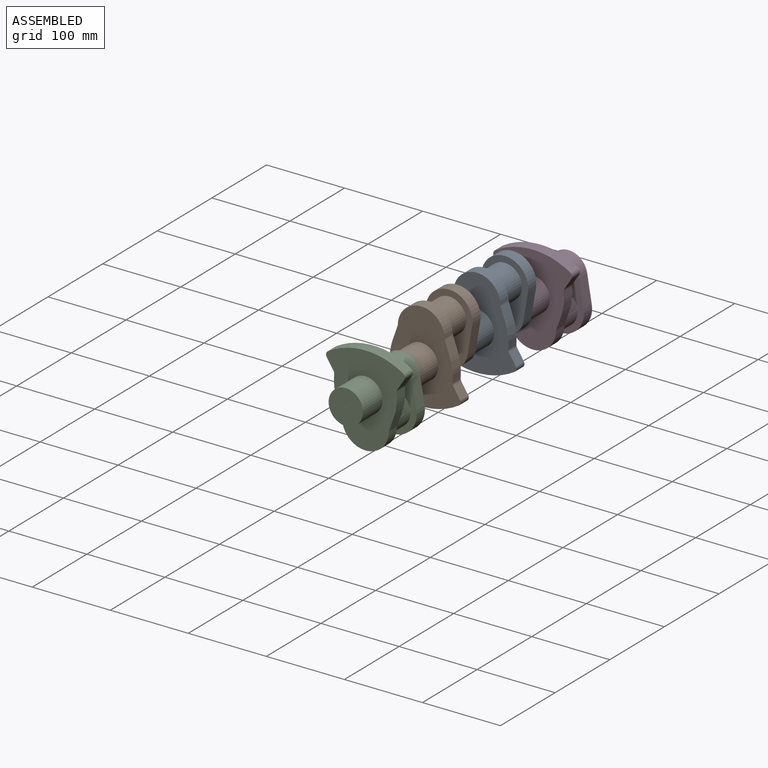
[diagram: assembled view]
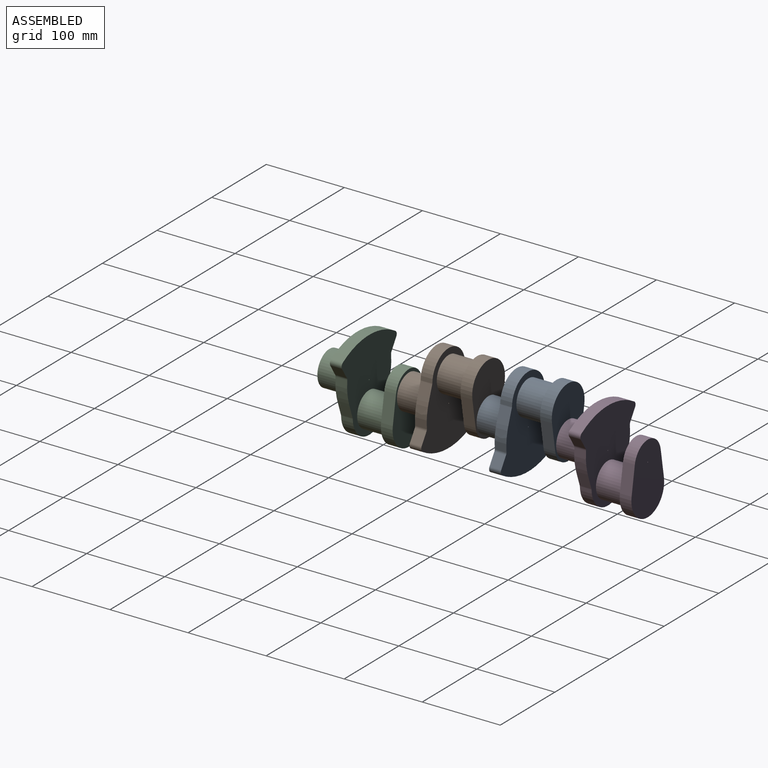
[diagram: assembled view, second angle]
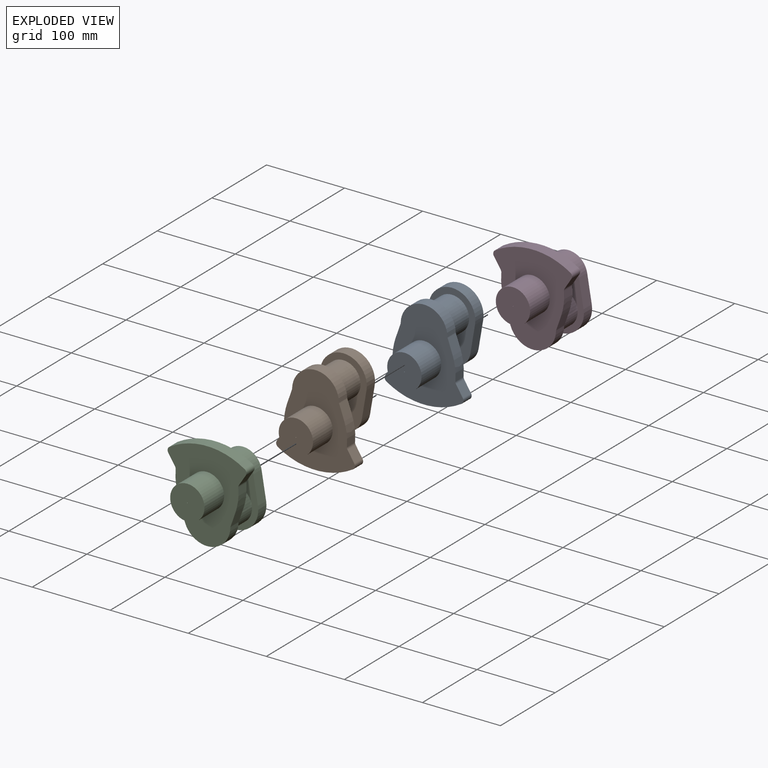
[diagram: exploded view]
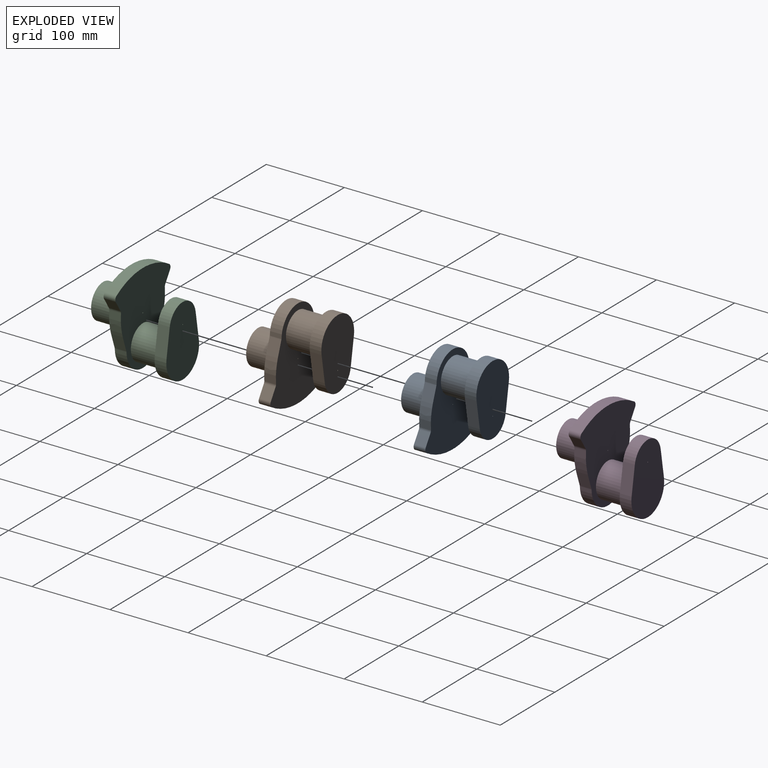
[diagram: exploded view, second angle]
ASSEMBLY  parts=4 mates=3
PART A: 29 faces, bbox 101x102x115.9 mm
  f0: cylinder r=22mm len=44mm, axis (0,1,0), area 4976.3mm2, adj f10,f24
  f1: plane 15x13.74mm, normal (0.84,0,-0.54), area 244.8mm2, adj f9,f10,f11,f16
  f2: cylinder r=91mm len=96.28mm, axis (0,1,0), area 1521.8mm2, adj f9,f10,f11,f12
  f3: plane 15x13.74mm, normal (-0.84,0,-0.54), area 244.8mm2, adj f9,f10,f12,f13
  f4: extruded ~33.58x15mm, area 513.8mm2, adj f9,f10,f13,f14
  f5: plane 15x13.91mm, normal (-0.94,0,-0.33), area 221.1mm2, adj f9,f10,f14,f17
  f6: cylinder r=30mm len=59.98mm, axis (0,1,0), area 1391mm2, adj f9,f10,f17,f18
  f7: plane 15x13.91mm, normal (0.94,0,-0.33), area 221.1mm2, adj f9,f10,f15,f18
  f8: extruded ~33.58x15mm, area 513.8mm2, adj f9,f10,f15,f16
  f9: plane 115.86x100.99mm, normal (0,-1,0), area 6557.3mm2, adj f1,f2,f3,f4,f5,f6,f7,f8
  f10: plane 115.86x100.99mm, normal (0,1,0), area 6556.5mm2, adj f0,f1,f2,f3,f4,f5,f6,f7
  f11: cylinder r=5mm len=15mm, axis (0,1,0), area 118.8mm2, adj f1,f2,f9,f10
  f12: cylinder r=5mm len=15mm, axis (0,1,0), area 118.8mm2, adj f2,f3,f9,f10
  f13: cylinder r=5mm len=15mm, axis (0,1,0), area 47.9mm2, adj f3,f4,f9,f10
  f14: cylinder r=5mm len=15mm, axis (0,1,0), area 1.5mm2, adj f4,f5,f9,f10
  f15: cylinder r=5mm len=15mm, axis (0,1,0), area 1.5mm2, adj f7,f8,f9,f10
  f16: cylinder r=5mm len=15mm, axis (0,1,0), area 47.9mm2, adj f1,f8,f9,f10
  f17: cylinder r=5mm len=15mm, axis (0,1,0), area 23.4mm2, adj f5,f6,f9,f10
  f18: cylinder r=5mm len=15mm, axis (0,1,0), area 23.4mm2, adj f6,f7,f9,f10
  f19: plane 35x15mm, normal (0.99,0,0.17), area 532.4mm2, adj f20,f22,f23,f24
  f20: cylinder r=30mm len=60mm, axis (0,-1,0), area 1564.4mm2, adj f19,f21,f23,f24
  f21: plane 35x15mm, normal (-0.99,0,0.17), area 532.4mm2, adj f20,f22,f23,f24
  f22: cylinder r=24mm len=47.33mm, axis (0,-1,0), area 1010.4mm2, adj f19,f21,f23,f24
  f23: plane 90x60mm, normal (0,1,0), area 4288.8mm2, adj f19,f20,f21,f22,f28
  f24: plane 90x60mm, normal (0,-1,0), area 2768.2mm2, adj f0,f19,f20,f21,f22,f28
  f25: cylinder r=22mm len=44mm, axis (0,1,0), area 4976.3mm2, adj f9,f26
  f26: plane 44x44mm, normal (0,-1,0), area 1519.7mm2, adj f25,f27
  f27: cylinder r=0.5mm len=51mm, axis (0,-1,0), area 160.2mm2, adj f10,f26
  f28: cylinder r=0.5mm len=15mm, axis (0,-1,0), area 47.1mm2, adj f23,f24
PART B: same geometry as A
PART C: same geometry as A
PART D: same geometry as A
PLACE A rot(axis=(0,1,0),180deg) t=(0,-78,68)mm
PLACE B rot(axis=(0,1,0),180deg) t=(0,-180,68)mm
PLACE C t=(0,-282,0)mm
PLACE D t=(0,24,0)mm
MATE fastened A.f25 <-> D.f25  axis (0,1,0) through (0,-63,34)mm
MATE fastened B.f25 <-> A.f25  axis (0,1,0) through (0,-165,34)mm
MATE fastened C.f25 <-> B.f25  axis (0,1,0) through (0,-267,34)mm
